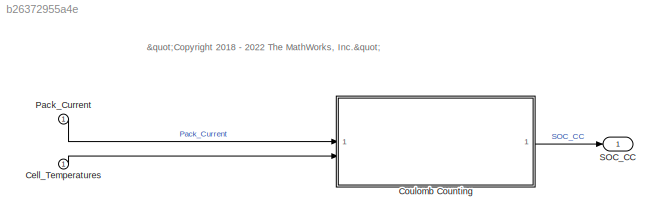
MODEL slx_b26372955a4e
KIND model
CONFIG AbsTol = auto
CONFIG EnableMultiTasking = off
CONFIG FixedStep = auto
CONFIG MaxStep = auto
CONFIG MinStep = auto
CONFIG RelTol = 1e-3
CONFIG SampleTimeConstraint = Unconstrained
CONFIG SolverName = VariableStepAuto
CONFIG StartTime = 0.0
CONFIG StopTime = 10.0
BLOCK [Inport] Cell_Temperatures
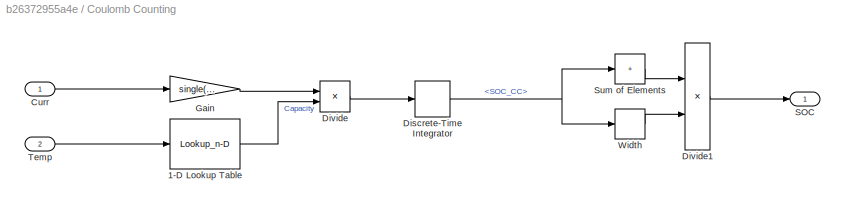
BLOCK [SubSystem] Coulomb Counting
  VariantControl = SocAlgo==1
BLOCK [Lookup_n-D] Coulomb Counting/1-D Lookup Table
  BreakpointsForDimension1 = single(BatteryNN(1).T_vec)
  InputPortMap = u0
  InternalRulePriority = Speed
  NumberOfTableDimensions = 1
  RndMeth = Simplest
  Table = single(BatteryNN(1).AH)*Np_Module
BLOCK [Inport] Coulomb Counting/Curr
BLOCK [DiscreteIntegrator] Coulomb Counting/Discrete-Time Integrator
  ICPrevOutput = DiscIntNeverNeededParam
  ICPrevScaledInput = DiscIntNeverNeededParam
  InitialCondition = ones(1,NumModules*Ns_Module)*single(SOCInit)
  InitialConditionSetting = Auto
  LimitOutput = on
  LowerSaturationLimit = 0
  SampleTime = -1
  UpperSaturationLimit = 1
BLOCK [Product] Coulomb Counting/Divide
  Inputs = */
  NameLocation = top
BLOCK [Product] Coulomb Counting/Divide1
  Inputs = */
BLOCK [Gain] Coulomb Counting/Gain
  Gain = single(1/3600)
BLOCK [Outport] Coulomb Counting/SOC
  VectorParamsAs1DForOutWhenUnconnected = off
BLOCK [Sum] Coulomb Counting/Sum of Elements
  IconShape = rectangular
  Inputs = +
BLOCK [Inport] Coulomb Counting/Temp
  Port = 2
BLOCK [Width] Coulomb Counting/Width
  DataType = single
BLOCK [Inport] Pack_Current
BLOCK [Outport] SOC_CC
ANNOTATION (root): "<copyright redacted>
LINE Cell_Temperatures:1 -> Coulomb Counting:2
LINE Coulomb Counting/1-D Lookup Table:1 -> Coulomb Counting/Divide:2
LINE Coulomb Counting/Curr:1 -> Coulomb Counting/Gain:1
NET Coulomb Counting/Discrete-Time Integrator:1 -> Coulomb Counting/Sum of Elements:1, Coulomb Counting/Width:1
LINE Coulomb Counting/Divide1:1 -> Coulomb Counting/SOC:1
LINE Coulomb Counting/Divide:1 -> Coulomb Counting/Discrete-Time Integrator:1
LINE Coulomb Counting/Gain:1 -> Coulomb Counting/Divide:1
LINE Coulomb Counting/Sum of Elements:1 -> Coulomb Counting/Divide1:1
LINE Coulomb Counting/Temp:1 -> Coulomb Counting/1-D Lookup Table:1
LINE Coulomb Counting/Width:1 -> Coulomb Counting/Divide1:2
LINE Coulomb Counting:1 -> SOC_CC:1
LINE Pack_Current:1 -> Coulomb Counting:1
note: NET lines group one-source signal fan-out (src -> all destinations, sorted); 1:1 wires keep LINE
